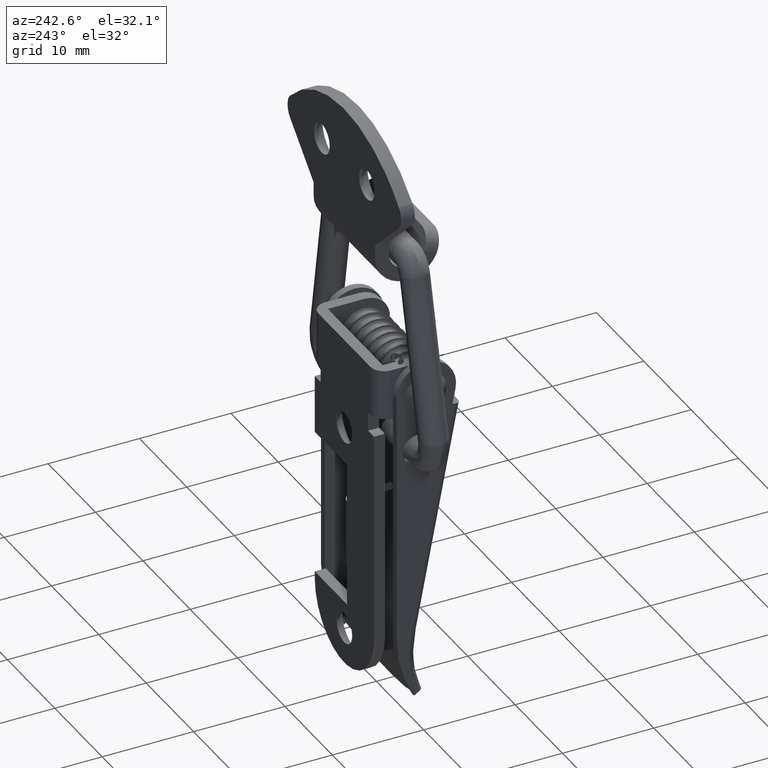
[diagram: clean part render]
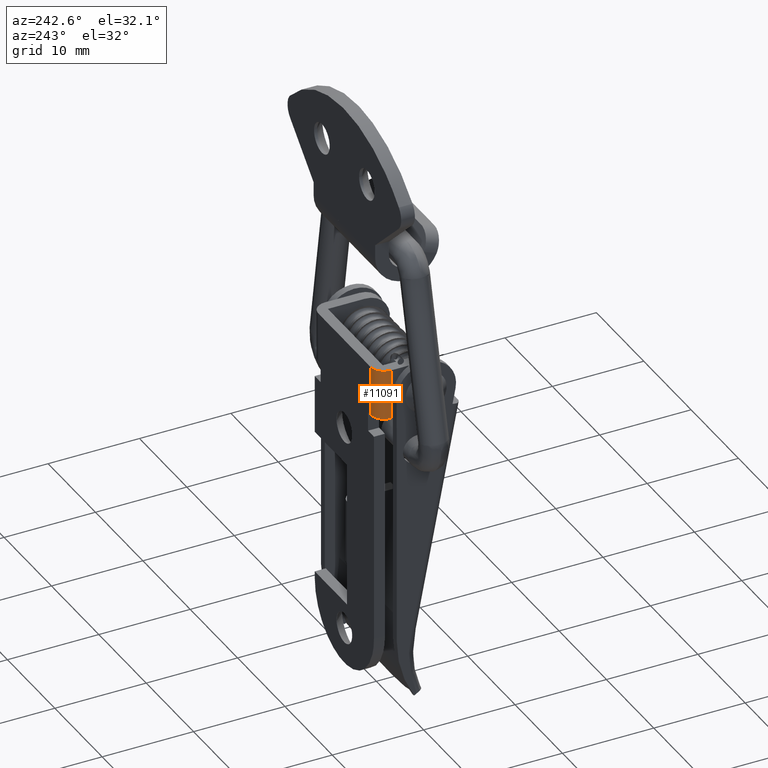
[diagram: same view with one face highlighted and labeled with its STEP entity id]
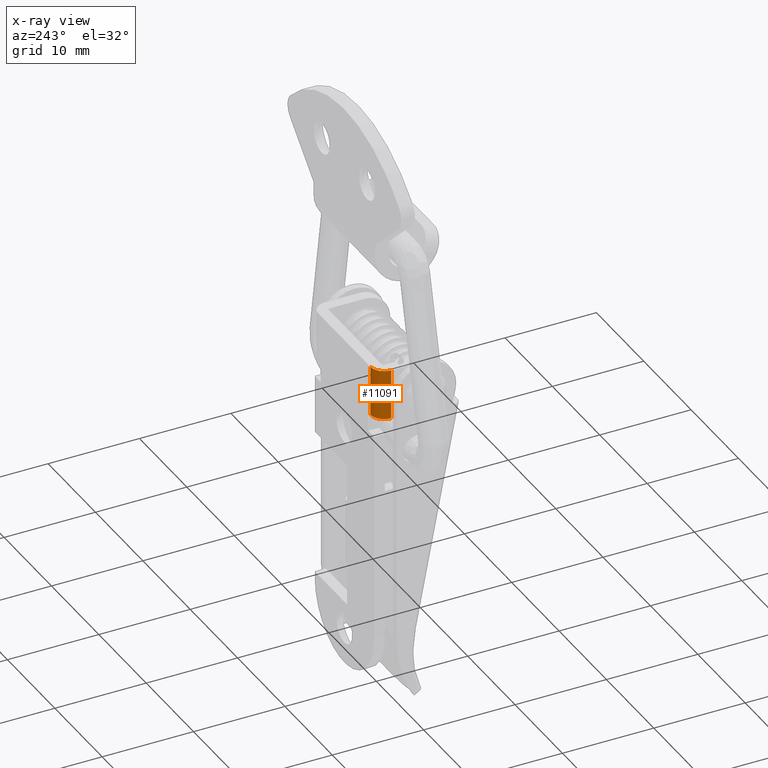
[diagram: x-ray of the same camera — body ghosted, the highlighted face saturated]
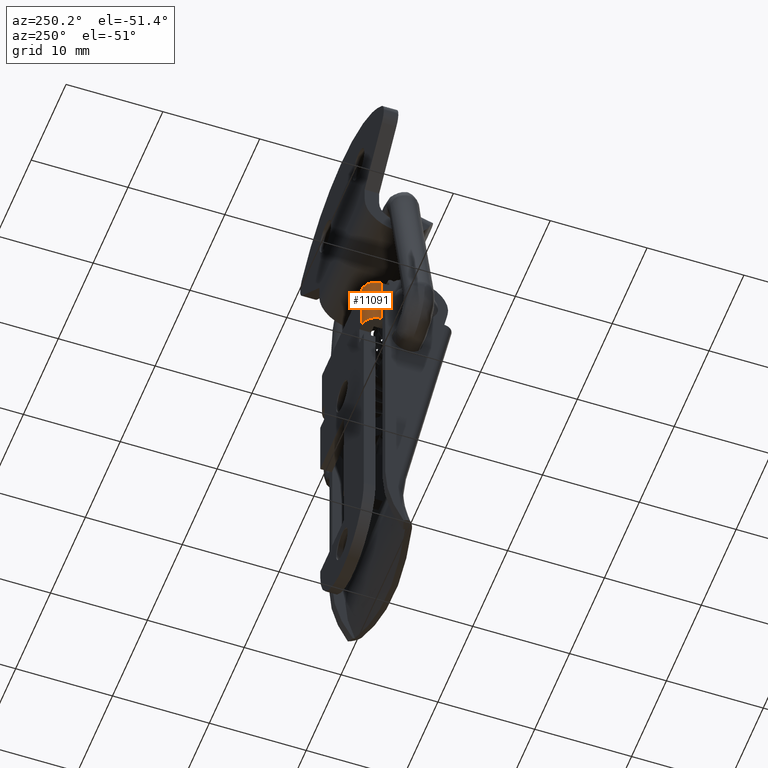
[diagram: same view with one face highlighted and labeled with its STEP entity id]
A machine part, auxiliary view. The second image highlights one B-rep face of the part: STEP entity #11091.
The next image is the same camera in x-ray: the body ghosted, the highlighted face saturated — about 0% of this face is hidden behind the body in this view.
A second angle (auxiliary view) of the same face is appended — the face is thin or edge-on in the first view.
In plain terms, the highlighted face is a freeform B-spline surface patch.
Its self-contained STEP definition (entity closure, byte-faithful):
#11031=CARTESIAN_POINT('',(-6.999942884596257,1.986910196752441,-18.138500000000001));
#11032=CARTESIAN_POINT('',(-6.999942884596257,1.986910196752441,-12.360062500000000));
#11033=CARTESIAN_POINT('',(-7.013979980019320,3.595402013017628,-18.138499999999993));
#11034=CARTESIAN_POINT('',(-7.013979980019320,3.595402013017628,-12.360062499999998));
#11035=CARTESIAN_POINT('',(-5.408427190697715,3.497202197632799,-18.138500000000001));
#11036=CARTESIAN_POINT('',(-5.408427190697715,3.497202197632799,-12.360062500000000));
#11044=(BOUNDED_SURFACE()B_SPLINE_SURFACE(1,2,((#11031,#11033,#11035),(#11032,#11034,#11036)),.UNSPECIFIED.,.F.,.F.,.U.)B_SPLINE_SURFACE_WITH_KNOTS((2,2),(3,3),(0.0,5.778437500000003),(0.0,2.608874249765598),.UNSPECIFIED.)GEOMETRIC_REPRESENTATION_ITEM()RATIONAL_B_SPLINE_SURFACE(((1.0,0.681998360062499,1.0),(1.0,0.681998360062499,1.0)))REPRESENTATION_ITEM('')SURFACE());
#11045=CARTESIAN_POINT('',(-5.500000000000000,3.500000000000000,-12.500999999999999));
#11046=VERTEX_POINT('',#11045);
#11047=CARTESIAN_POINT('',(-7.0,2.0,-12.500999999999999));
#11048=VERTEX_POINT('',#11047);
#11049=CARTESIAN_POINT('',(-5.500000000000000,3.500000000000000,-12.500999999999999));
#11050=CARTESIAN_POINT('',(-6.999999999999999,3.500000000000000,-12.500999999999999));
#11051=CARTESIAN_POINT('',(-6.999999999999999,2.0,-12.500999999999999));
#11059=(BOUNDED_CURVE()B_SPLINE_CURVE(2,(#11049,#11050,#11051),.UNSPECIFIED.,.F.,.U.)CURVE()GEOMETRIC_REPRESENTATION_ITEM()QUASI_UNIFORM_CURVE()RATIONAL_B_SPLINE_CURVE((1.0,0.707106781186548,1.0))REPRESENTATION_ITEM(''));
#11060=EDGE_CURVE('',#11046,#11048,#11059,.T.);
#11061=ORIENTED_EDGE('',*,*,#11060,.F.);
#11062=CARTESIAN_POINT('',(-5.500000000000000,3.500000000000000,-18.001000000000001));
#11063=VERTEX_POINT('',#11062);
#11064=CARTESIAN_POINT('',(-5.500000000000000,3.500000000000000,-18.001000000000001));
#11065=CARTESIAN_POINT('',(-5.500000000000000,3.500000000000000,-12.500999999999999));
#11066=QUASI_UNIFORM_CURVE('',1,(#11064,#11065),.UNSPECIFIED.,.F.,.U.);
#11067=EDGE_CURVE('',#11063,#11046,#11066,.T.);
#11068=ORIENTED_EDGE('',*,*,#11067,.F.);
#11069=CARTESIAN_POINT('',(-7.0,2.0,-18.001000000000001));
#11070=VERTEX_POINT('',#11069);
#11071=CARTESIAN_POINT('',(-6.999999999999999,2.0,-18.001000000000001));
#11072=CARTESIAN_POINT('',(-6.999999999999999,3.500000000000000,-18.000999999999998));
#11073=CARTESIAN_POINT('',(-5.500000000000000,3.500000000000000,-18.001000000000001));
#11081=(BOUNDED_CURVE()B_SPLINE_CURVE(2,(#11071,#11072,#11073),.UNSPECIFIED.,.F.,.U.)CURVE()GEOMETRIC_REPRESENTATION_ITEM()QUASI_UNIFORM_CURVE()RATIONAL_B_SPLINE_CURVE((1.0,0.707106781186548,1.0))REPRESENTATION_ITEM(''));
#11082=EDGE_CURVE('',#11070,#11063,#11081,.T.);
#11083=ORIENTED_EDGE('',*,*,#11082,.F.);
#11084=CARTESIAN_POINT('',(-7.0,2.0,-12.500999999999999));
#11085=CARTESIAN_POINT('',(-7.0,2.0,-18.001000000000001));
#11086=QUASI_UNIFORM_CURVE('',1,(#11084,#11085),.UNSPECIFIED.,.F.,.U.);
#11087=EDGE_CURVE('',#11048,#11070,#11086,.T.);
#11088=ORIENTED_EDGE('',*,*,#11087,.F.);
#11089=EDGE_LOOP('',(#11061,#11068,#11083,#11088));
#11090=FACE_OUTER_BOUND('',#11089,.T.);
#11091=ADVANCED_FACE('',(#11090),#11044,.T.);